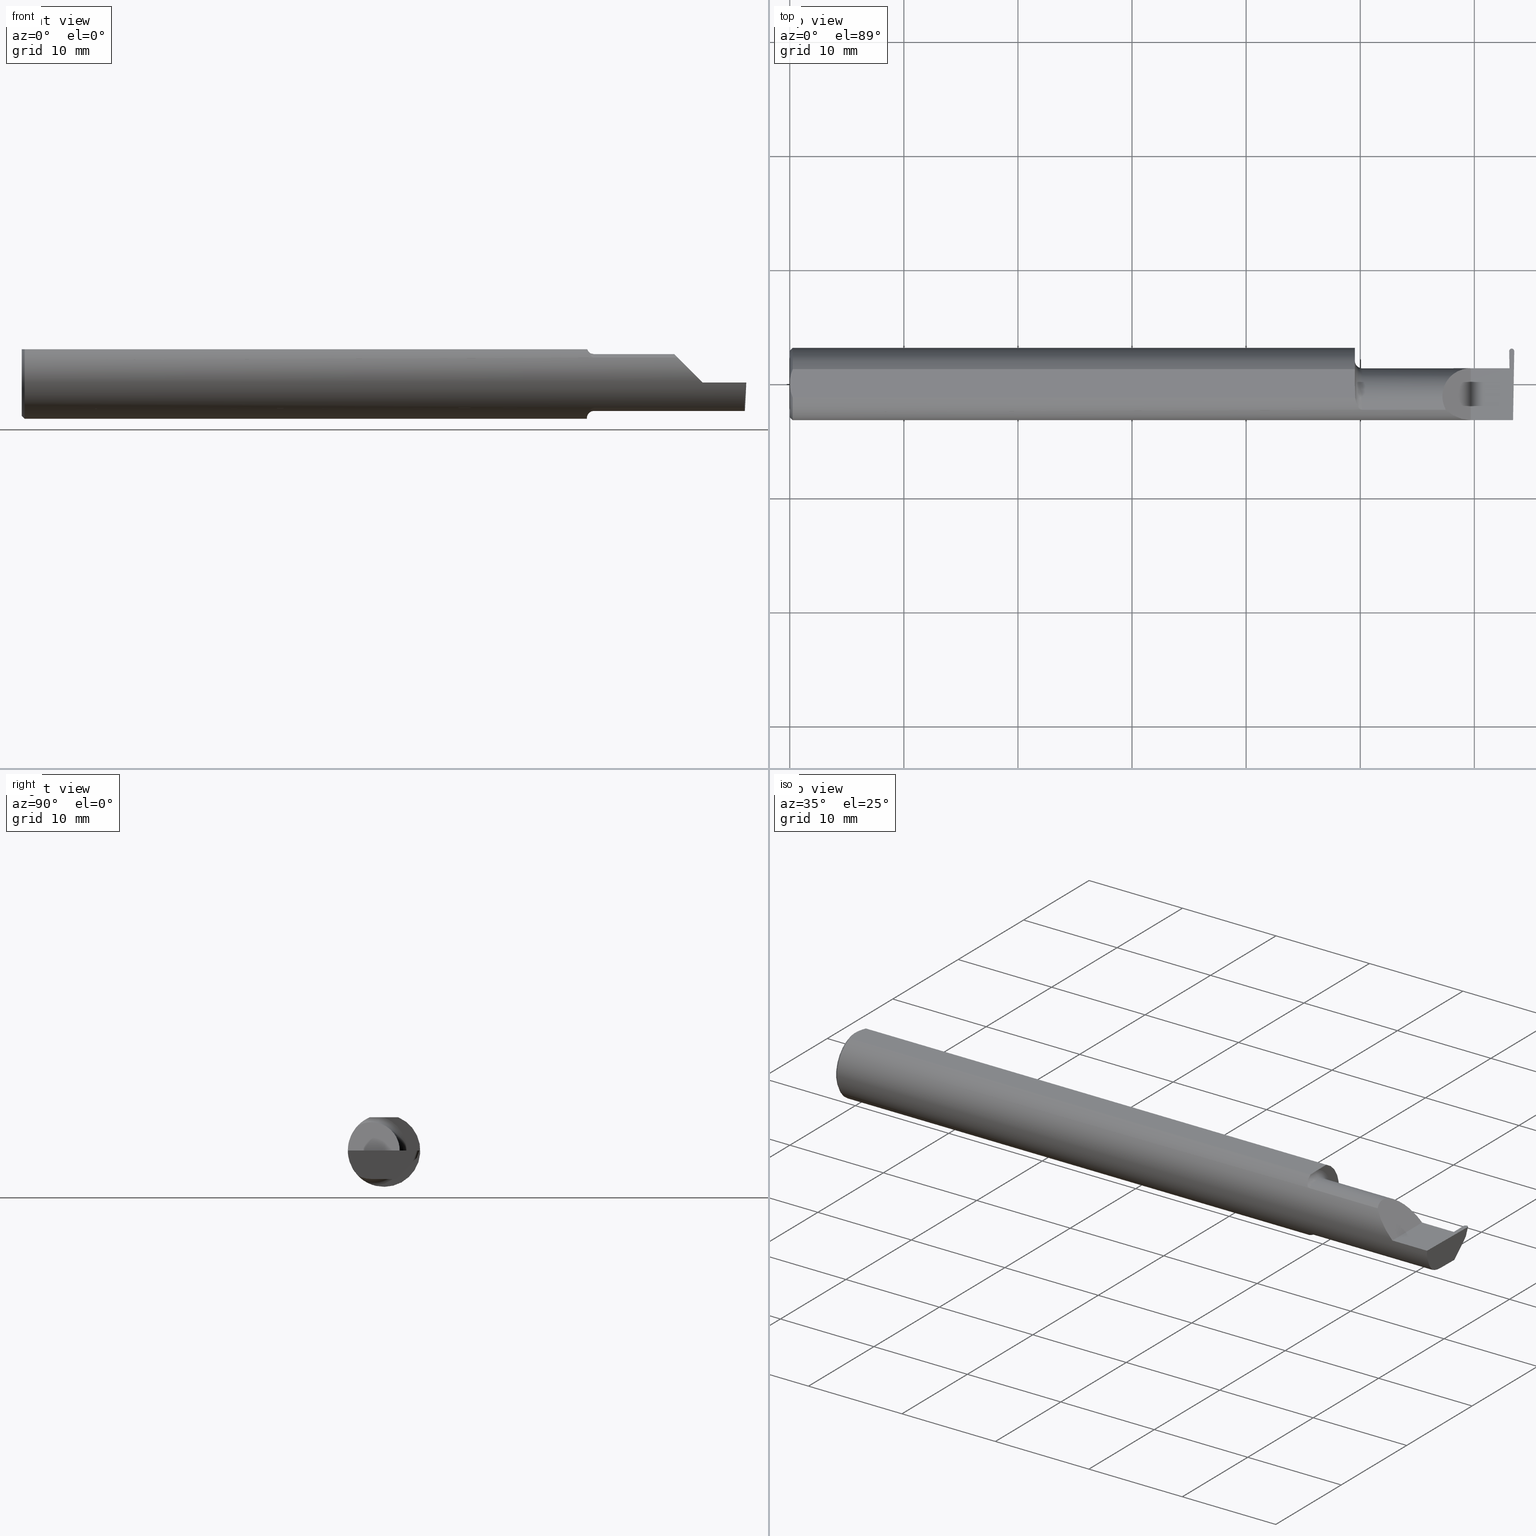
[diagram: canonical four-view strip — front | top / right | iso, engineering-drawing reading convention]
A machine part, canonical four-view strip (front | top / right | iso — engineering-drawing reading convention). The complete STEP part file that produces these views, byte-faithful:
ISO-10303-21;
HEADER;
FILE_DESCRIPTION (( 'STEP AP203' ),
    '1' );
FILE_NAME ('221918-GFR017Q-8.STEP',
    '2024-06-17T18:39:30',
    ( '' ),
    ( '' ),
    'SwSTEP 2.0',
    'SolidWorks 2022',
    '' );
FILE_SCHEMA (( 'CONFIG_CONTROL_DESIGN' ));
ENDSEC;

DATA;
#1 = VERTEX_POINT ( 'NONE', #115 ) ;
#2 = B_SPLINE_CURVE_WITH_KNOTS ( 'NONE', 3,
 ( #521, #93, #359, #642, #52, #631, #318, #646, #149, #696, #572, #683 ),
 .UNSPECIFIED., .F., .F.,
 ( 4, 2, 2, 2, 2, 4 ),
 ( 1.964009442425878487E-07, 0.0001304774066965835465, 0.0002607584124489245006, 0.0005213204239535936153, 0.001042444446962931086, 0.002084692492981607328 ),
 .UNSPECIFIED. ) ;
#3 = CARTESIAN_POINT ( 'NONE',  ( 1.970169762358874088, -0.08954173371311460738, 0.08723520050116033431 ) ) ;
#4 = CARTESIAN_POINT ( 'NONE',  ( 2.477090476183632539, 0.05376127692546276565, -0.006836134426923926553 ) ) ;
#5 = EDGE_CURVE ( 'NONE', #377, #389, #495, .T. ) ;
#6 = EDGE_CURVE ( 'NONE', #270, #13, #660, .T. ) ;
#7 = ORIENTED_EDGE ( 'NONE', *, *, #351, .T. ) ;
#8 = AXIS2_PLACEMENT_3D ( 'NONE', #60, #267, #539 ) ;
#9 = ORIENTED_EDGE ( 'NONE', *, *, #89, .F. ) ;
#10 = EDGE_CURVE ( 'NONE', #69, #497, #265, .T. ) ;
#11 = VERTEX_POINT ( 'NONE', #162 ) ;
#12 = CARTESIAN_POINT ( 'NONE',  ( 0.000000000000000000, 0.000000000000000000, 0.000000000000000000 ) ) ;
#13 = VERTEX_POINT ( 'NONE', #443 ) ;
#14 = DIRECTION ( 'NONE',  ( -0.03701368837992521227, 0.7066222423871550973, 0.7066222423871629799 ) ) ;
#15 = AXIS2_PLACEMENT_3D ( 'NONE', #12, #551, #181 ) ;
#16 = CARTESIAN_POINT ( 'NONE',  ( 1.949999999999999956, 0.05376127692546273096, -0.006836134426925155605 ) ) ;
#17 = ORIENTED_EDGE ( 'NONE', *, *, #6, .T. ) ;
#18 = FACE_OUTER_BOUND ( 'NONE', #392, .T. ) ;
#19 = ORIENTED_EDGE ( 'NONE', *, *, #260, .T. ) ;
#20 = CARTESIAN_POINT ( 'NONE',  ( 2.487116141968339189, -0.04422966076191067741, -0.09800000000000008704 ) ) ;
#21 = DIRECTION ( 'NONE',  ( -0.03549161113179514354, 0.03487750912278164694, 0.9987611851171729338 ) ) ;
#22 = CARTESIAN_POINT ( 'NONE',  ( 0.000000000000000000, 0.04898979485566374442, 0.1149999999999999217 ) ) ;
#23 = EDGE_CURVE ( 'NONE', #540, #515, #102, .T. ) ;
#24 = VERTEX_POINT ( 'NONE', #385 ) ;
#25 = CARTESIAN_POINT ( 'NONE',  ( 2.482619091902263264, 0.1593323594802356913, 0.02159622219918818850 ) ) ;
#26 =( CONVERSION_BASED_UNIT ( 'INCH', #673 ) LENGTH_UNIT ( ) NAMED_UNIT ( #35 ) );
#27 = VECTOR ( 'NONE', #613, 39.37007874015748143 ) ;
#28 = CARTESIAN_POINT ( 'NONE',  ( 2.498428636891867782, 0.09954970949977201555, -0.03818642778127616377 ) ) ;
#29 = CIRCLE ( 'NONE', #634, 0.1250000000000000000 ) ;
#30 = CARTESIAN_POINT ( 'NONE',  ( 2.491241705000000195, 0.1136654917638221379, -0.02407064551722588180 ) ) ;
#31 = PERSON_AND_ORGANIZATION_ROLE ( 'design_owner' ) ;
#32 = DESIGN_CONTEXT ( 'detailed design', #648, 'design' ) ;
#33 = CARTESIAN_POINT ( 'NONE',  ( 1.949999999999999956, 0.000000000000000000, 0.000000000000000000 ) ) ;
#34 = VERTEX_POINT ( 'NONE', #659 ) ;
#35 = DIMENSIONAL_EXPONENTS ( 1.000000000000000000, 0.000000000000000000, 0.000000000000000000, 0.000000000000000000, 0.000000000000000000, 0.000000000000000000, 0.000000000000000000 ) ;
#36 = CARTESIAN_POINT ( 'NONE',  ( 2.482484743930750248, 0.1130888516759625262, 0.000000000000000000 ) ) ;
#37 = PRODUCT ( '221918-GFR017Q-8', '221918-GFR017Q-8', '', ( #555 ) ) ;
#38 = ORIENTED_EDGE ( 'NONE', *, *, #661, .F. ) ;
#39 = DATE_TIME_ROLE ( 'creation_date' ) ;
#40 = DIRECTION ( 'NONE',  ( 0.03490480639812536257, 0.000000000000000000, -0.9993906415863165194 ) ) ;
#41 = ORIENTED_EDGE ( 'NONE', *, *, #5, .T. ) ;
#42 = PERSON_AND_ORGANIZATION ( #624, #255 ) ;
#43 = AXIS2_PLACEMENT_3D ( 'NONE', #188, #280, #411 ) ;
#44 = CARTESIAN_POINT ( 'NONE',  ( 0.000000000000000000, 3.414809992080329023E-17, 0.1149999999999999217 ) ) ;
#45 = DIRECTION ( 'NONE',  ( 0.000000000000000000, 0.000000000000000000, -1.000000000000000000 ) ) ;
#46 = ORIENTED_EDGE ( 'NONE', *, *, #480, .F. ) ;
#47 = DIRECTION ( 'NONE',  ( 0.000000000000000000, 0.000000000000000000, 1.000000000000000000 ) ) ;
#48 = DIRECTION ( 'NONE',  ( 0.7071067811865530128, 0.000000000000000000, -0.7071067811865421326 ) ) ;
#49 = LINE ( 'NONE', #482, #335 ) ;
#50 = EDGE_LOOP ( 'NONE', ( #120, #568, #438, #691, #96, #699, #214, #73, #312, #92 ) ) ;
#51 = CARTESIAN_POINT ( 'NONE',  ( 2.493888306049834025, -0.04088383864926517508, -0.09800000000000008704 ) ) ;
#52 = CARTESIAN_POINT ( 'NONE',  ( 1.967439721641150552, -0.08786602687380742904, -0.08891702384475583254 ) ) ;
#53 = APPROVAL_DATE_TIME ( #586, #189 ) ;
#54 = EDGE_LOOP ( 'NONE', ( #202, #223, #179, #226, #477, #103 ) ) ;
#55 = APPROVAL_PERSON_ORGANIZATION ( #530, #444, #580 ) ;
#56 = ADVANCED_FACE ( 'NONE', ( #596 ), #328, .F. ) ;
#57 = CARTESIAN_POINT ( 'NONE',  ( 2.491241705000000195, 0.1136654917638221379, -0.02407064551722588180 ) ) ;
#58 = CARTESIAN_POINT ( 'NONE',  ( 2.477249624899990899, 0.05392042564182090297, -0.002278711475641305526 ) ) ;
#59 = EDGE_CURVE ( 'NONE', #158, #289, #83, .T. ) ;
#60 = CARTESIAN_POINT ( 'NONE',  ( 2.753179778023443269, 0.1250000000000000278, 0.1149999999999999217 ) ) ;
#61 = CARTESIAN_POINT ( 'NONE',  ( 1.951184456069788187, -0.03277259381711294245, 0.1149999999999999356 ) ) ;
#62 = DIRECTION ( 'NONE',  ( -0.9992386149554827179, 0.01744177490282193196, 0.03489949670250104552 ) ) ;
#63 = CARTESIAN_POINT ( 'NONE',  ( 2.491241705000000195, 0.1210669986517045327, -0.002709632664605812237 ) ) ;
#64 = ORIENTED_EDGE ( 'NONE', *, *, #405, .T. ) ;
#65 = CIRCLE ( 'NONE', #346, 0.1250000000000000000 ) ;
#66 = AXIS2_PLACEMENT_3D ( 'NONE', #82, #669, #468 ) ;
#67 = ORIENTED_EDGE ( 'NONE', *, *, #550, .T. ) ;
#68 = DIRECTION ( 'NONE',  ( -1.000000000000000000, -0.000000000000000000, -0.000000000000000000 ) ) ;
#69 = VERTEX_POINT ( 'NONE', #28 ) ;
#70 =( BOUNDED_CURVE ( )  B_SPLINE_CURVE ( 3, ( #169, #215, #217, #166 ),
 .UNSPECIFIED., .F., .F. ) 
 B_SPLINE_CURVE_WITH_KNOTS ( ( 4, 4 ),
 ( 3.176499238629681532, 4.677482395344799926 ),
 .UNSPECIFIED. ) 
 CURVE ( )  GEOMETRIC_REPRESENTATION_ITEM ( )  RATIONAL_B_SPLINE_CURVE ( ( 1.000000000000000000, 0.8209024677461147501, 0.8209024677461147501, 1.000000000000000000 ) ) 
 REPRESENTATION_ITEM ( '' )  );
#71 = FACE_OUTER_BOUND ( 'NONE', #400, .T. ) ;
#72 = CARTESIAN_POINT ( 'NONE',  ( 2.317450832343515899, -0.1250000000000000278, 0.03254916765648410010 ) ) ;
#73 = ORIENTED_EDGE ( 'NONE', *, *, #351, .F. ) ;
#74 = CARTESIAN_POINT ( 'NONE',  ( 0.000000000000000000, 3.414809992080329023E-17, 0.1149999999999999217 ) ) ;
#75 =( BOUNDED_CURVE ( )  B_SPLINE_CURVE ( 3, ( #681, #574, #366, #90 ),
 .UNSPECIFIED., .F., .T. ) 
 B_SPLINE_CURVE_WITH_KNOTS ( ( 4, 4 ),
 ( 6.253187659403604215, 6.746650124384891534 ),
 .UNSPECIFIED. ) 
 CURVE ( )  GEOMETRIC_REPRESENTATION_ITEM ( )  RATIONAL_B_SPLINE_CURVE ( ( 1.000000000000000000, 0.9798106333074689811, 0.9798106333074689811, 1.000000000000000000 ) ) 
 REPRESENTATION_ITEM ( '' )  );
#76 = AXIS2_PLACEMENT_3D ( 'NONE', #177, #556, #284 ) ;
#77 = EDGE_CURVE ( 'NONE', #262, #307, #184, .T. ) ;
#78 = DIRECTION ( 'NONE',  ( 0.000000000000000000, -0.9455185755993166241, 0.3255681544571570885 ) ) ;
#79 = B_SPLINE_CURVE_WITH_KNOTS ( 'NONE', 3,
 ( #694, #253, #239, #578 ),
 .UNSPECIFIED., .F., .F.,
 ( 4, 4 ),
 ( 0.002331518380383306322, 0.003601362264757408584 ),
 .UNSPECIFIED. ) ;
#80 = VERTEX_POINT ( 'NONE', #509 ) ;
#81 = DIRECTION ( 'NONE',  ( -1.000000000000000000, 6.412988513727268357E-17, -0.000000000000000000 ) ) ;
#82 = CARTESIAN_POINT ( 'NONE',  ( 1.949999999999999956, -0.04400000000000006684, 0.000000000000000000 ) ) ;
#83 = LINE ( 'NONE', #610, #27 ) ;
#84 = ORIENTED_EDGE ( 'NONE', *, *, #391, .T. ) ;
#85 = CARTESIAN_POINT ( 'NONE',  ( 2.483516143673287768, 0.05399999999999997163, 0.000000000000000000 ) ) ;
#86 = CARTESIAN_POINT ( 'NONE',  ( 2.482491560144744369, 0.1126983510377570080, 0.000000000000000000 ) ) ;
#87 = VERTEX_POINT ( 'NONE', #506 ) ;
#88 = FACE_OUTER_BOUND ( 'NONE', #367, .T. ) ;
#89 = EDGE_CURVE ( 'NONE', #218, #34, #445, .T. ) ;
#90 = CARTESIAN_POINT ( 'NONE',  ( 2.493833913251130241, -0.04400000000000026112, -0.09800000000000008704 ) ) ;
#91 = APPROVAL ( #380, 'UNSPECIFIED' ) ;
#92 = ORIENTED_EDGE ( 'NONE', *, *, #260, .F. ) ;
#93 = CARTESIAN_POINT ( 'NONE',  ( 1.973259114367879707, -0.09042045454545442895, -0.08630840862739515285 ) ) ;
#94 = PERSON_AND_ORGANIZATION ( #624, #255 ) ;
#95 = PLANE ( 'NONE',  #558 ) ;
#96 = ORIENTED_EDGE ( 'NONE', *, *, #159, .T. ) ;
#97 = LINE ( 'NONE', #51, #143 ) ;
#98 = B_SPLINE_CURVE_WITH_KNOTS ( 'NONE', 3,
 ( #199, #368, #61, #221, #116, #431 ),
 .UNSPECIFIED., .F., .F.,
 ( 4, 2, 4 ),
 ( 0.009319464280412597182, 0.009934044568948198831, 0.01054862485748380048 ),
 .UNSPECIFIED. ) ;
#99 = LINE ( 'NONE', #644, #462 ) ;
#100 = VERTEX_POINT ( 'NONE', #349 ) ;
#101 = CARTESIAN_POINT ( 'NONE',  ( 2.491241705000000195, 0.1136654917638221379, -0.02407064551722588180 ) ) ;
#102 = CIRCLE ( 'NONE', #292, 0.1250000000000000000 ) ;
#103 = ORIENTED_EDGE ( 'NONE', *, *, #553, .T. ) ;
#104 = CC_DESIGN_SECURITY_CLASSIFICATION ( #561, ( #441 ) ) ;
#105 = CARTESIAN_POINT ( 'NONE',  ( 2.228741705000000017, -0.09042045454545429017, 0.08630840862739524999 ) ) ;
#106 = ORIENTED_EDGE ( 'NONE', *, *, #653, .F. ) ;
#107 =( BOUNDED_CURVE ( )  B_SPLINE_CURVE ( 3, ( #454, #672, #340, #30 ),
 .UNSPECIFIED., .F., .T. ) 
 B_SPLINE_CURVE_WITH_KNOTS ( ( 4, 4 ),
 ( 4.726121454046339210, 6.201952002335866077 ),
 .UNSPECIFIED. ) 
 CURVE ( )  GEOMETRIC_REPRESENTATION_ITEM ( )  RATIONAL_B_SPLINE_CURVE ( ( 1.000000000000000000, 0.8265817722885200336, 0.8265817722885200336, 1.000000000000000000 ) ) 
 REPRESENTATION_ITEM ( '' )  );
#108 = CARTESIAN_POINT ( 'NONE',  ( 1.951278290187167697, -0.04898979485482139740, 0.1149999999999999217 ) ) ;
#109 = ORIENTED_EDGE ( 'NONE', *, *, #150, .T. ) ;
#110 = EDGE_CURVE ( 'NONE', #630, #377, #399, .T. ) ;
#111 = CARTESIAN_POINT ( 'NONE',  ( 1.952426556614086817, -0.05801934803182858674, 0.1111534264545073619 ) ) ;
#112 = DIRECTION ( 'NONE',  ( 0.000000000000000000, 0.000000000000000000, -1.000000000000000000 ) ) ;
#113 = ADVANCED_FACE ( 'NONE', ( #396 ), #496, .F. ) ;
#114 = VECTOR ( 'NONE', #245, 39.37007874015748143 ) ;
#115 = CARTESIAN_POINT ( 'NONE',  ( 2.350000000000000089, -0.1250000000000000278, 1.836970198721028825E-17 ) ) ;
#116 = CARTESIAN_POINT ( 'NONE',  ( 1.950000000000000178, -0.008475349815581094057, 0.1149999999999999356 ) ) ;
#117 = ORIENTED_EDGE ( 'NONE', *, *, #271, .T. ) ;
#118 = CC_DESIGN_PERSON_AND_ORGANIZATION_ASSIGNMENT ( #426, #428, ( #441 ) ) ;
#119 = CARTESIAN_POINT ( 'NONE',  ( 2.485980426908312779, 0.1220000000000002333, 1.771906798517136265E-17 ) ) ;
#120 = ORIENTED_EDGE ( 'NONE', *, *, #464, .T. ) ;
#121 = VECTOR ( 'NONE', #455, 39.37007874015748143 ) ;
#122 = AXIS2_PLACEMENT_3D ( 'NONE', #148, #47, #590 ) ;
#123 = DIRECTION ( 'NONE',  ( 0.000000000000000000, -0.3255681544571570885, -0.9455185755993166241 ) ) ;
#124 = CARTESIAN_POINT ( 'NONE',  ( 0.004414142251465132810, -0.03315347577847933824, 0.1149999999999999356 ) ) ;
#125 = CARTESIAN_POINT ( 'NONE',  ( 2.487309710820275743, -2.433500170848689415, -0.02001865397949318184 ) ) ;
#126 = PLANE ( 'NONE',  #573 ) ;
#127 = EDGE_CURVE ( 'NONE', #1, #617, #616, .T. ) ;
#128 = CARTESIAN_POINT ( 'NONE',  ( 2.287236475649208511, -0.1128945894460739036, 0.06276352435079098069 ) ) ;
#129 = CARTESIAN_POINT ( 'NONE',  ( 2.499991849855255133, 0.1126983510377570219, 0.000000000000000000 ) ) ;
#130 = CARTESIAN_POINT ( 'NONE',  ( 1.949999999999999956, 0.05399999999999999245, 6.735557395310437586E-17 ) ) ;
#131 = APPROVAL_PERSON_ORGANIZATION ( #211, #91, #264 ) ;
#132 = LOCAL_TIME ( 11, 39, 30.00000000000000000, #419 ) ;
#133 = DIRECTION ( 'NONE',  ( -1.224646799147352468E-16, 0.000000000000000000, -1.000000000000000000 ) ) ;
#134 = CARTESIAN_POINT ( 'NONE',  ( 2.350000000000000089, -0.2500000000000000555, 1.836970198721028825E-17 ) ) ;
#135 = ADVANCED_FACE ( 'NONE', ( #281 ), #341, .T. ) ;
#136 = ORIENTED_EDGE ( 'NONE', *, *, #334, .F. ) ;
#137 = CARTESIAN_POINT ( 'NONE',  ( 2.263691591372603895, -0.09042045454545455385, 0.08630840862739504182 ) ) ;
#138 = CARTESIAN_POINT ( 'NONE',  ( 2.499991849855255133, 0.1126983510377570219, 0.000000000000000000 ) ) ;
#139 = ORIENTED_EDGE ( 'NONE', *, *, #524, .F. ) ;
#140 = FACE_OUTER_BOUND ( 'NONE', #679, .T. ) ;
#141 = DIRECTION ( 'NONE',  ( 0.000000000000000000, -1.000000000000000000, 0.000000000000000000 ) ) ;
#142 = ORIENTED_EDGE ( 'NONE', *, *, #689, .T. ) ;
#143 = VECTOR ( 'NONE', #263, 39.37007874015748854 ) ;
#144 = COORDINATED_UNIVERSAL_TIME_OFFSET ( 8, 0, .BEHIND. ) ;
#145 = DIRECTION ( 'NONE',  ( 0.000000000000000000, -1.000000000000000000, 0.000000000000000000 ) ) ;
#146 = VERTEX_POINT ( 'NONE', #459 ) ;
#147 = ADVANCED_FACE ( 'NONE', ( #225 ), #678, .F. ) ;
#148 = CARTESIAN_POINT ( 'NONE',  ( 2.672413070268786939, -0.04400000000000026112, -0.09800000000000008704 ) ) ;
#149 = CARTESIAN_POINT ( 'NONE',  ( 1.955932841370988884, -0.07048791403321996718, -0.1034389270157552443 ) ) ;
#150 = EDGE_CURVE ( 'NONE', #1, #186, #628, .T. ) ;
#151 = DIRECTION ( 'NONE',  ( 0.000000000000000000, 1.000000000000000000, 0.000000000000000000 ) ) ;
#152 = ORIENTED_EDGE ( 'NONE', *, *, #252, .F. ) ;
#153 = PERSON_AND_ORGANIZATION_ROLE ( 'classification_officer' ) ;
#154 = EDGE_CURVE ( 'NONE', #592, #270, #344, .T. ) ;
#155 = DIRECTION ( 'NONE',  ( -0.03867711768363056579, 0.3253245514560478280, 0.9448111011136606230 ) ) ;
#156 = ORIENTED_EDGE ( 'NONE', *, *, #553, .F. ) ;
#157 = VECTOR ( 'NONE', #458, 39.37007874015747433 ) ;
#158 = VERTEX_POINT ( 'NONE', #408 ) ;
#159 = EDGE_CURVE ( 'NONE', #617, #13, #604, .T. ) ;
#160 = DATE_AND_TIME ( #319, #448 ) ;
#161 = CARTESIAN_POINT ( 'NONE',  ( 2.482491560144744369, 0.1126983510377570080, 0.000000000000000000 ) ) ;
#162 = CARTESIAN_POINT ( 'NONE',  ( 2.491241705000000195, 0.1136654917638221379, -0.02407064551722588180 ) ) ;
#163 = ORIENTED_EDGE ( 'NONE', *, *, #405, .F. ) ;
#164 = AXIS2_PLACEMENT_3D ( 'NONE', #670, #78, #123 ) ;
#165 = APPROVAL_PERSON_ORGANIZATION ( #42, #189, #701 ) ;
#166 = CARTESIAN_POINT ( 'NONE',  ( 2.483759070038810801, 0.05376127692546273790, -0.006836134426924772231 ) ) ;
#167 = VERTEX_POINT ( 'NONE', #86 ) ;
#168 =( BOUNDED_CURVE ( )  B_SPLINE_CURVE ( 3, ( #356, #311, #413, #192 ),
 .UNSPECIFIED., .F., .T. ) 
 B_SPLINE_CURVE_WITH_KNOTS ( ( 4, 4 ),
 ( 0.3451966888490702323, 1.107331509589587926 ),
 .UNSPECIFIED. ) 
 CURVE ( )  GEOMETRIC_REPRESENTATION_ITEM ( )  RATIONAL_B_SPLINE_CURVE ( ( 1.000000000000000000, 0.9521787881681380572, 0.9521787881681380572, 1.000000000000000000 ) ) 
 REPRESENTATION_ITEM ( '' )  );
#169 = CARTESIAN_POINT ( 'NONE',  ( 2.487115857322145018, -0.04400000000000009459, -0.09800000000000008704 ) ) ;
#170 = EDGE_LOOP ( 'NONE', ( #353, #297 ) ) ;
#171 = CARTESIAN_POINT ( 'NONE',  ( 2.350000000000000089, -0.2500000000000000555, 1.836970198721028825E-17 ) ) ;
#172 = CARTESIAN_POINT ( 'NONE',  ( -3.937007874019685528E-05, 0.03973613728104874454, -0.09800000000000008704 ) ) ;
#173 = CONICAL_SURFACE ( 'NONE', #388, 0.1149999999999997274, 0.7853981633974407295 ) ;
#174 = FACE_OUTER_BOUND ( 'NONE', #638, .T. ) ;
#175 = ADVANCED_FACE ( 'NONE', ( #18 ), #567, .T. ) ;
#176 = CARTESIAN_POINT ( 'NONE',  ( 1.541666659510484467E-16, -0.008419750986449443114, 0.1149999999999999356 ) ) ;
#177 = CARTESIAN_POINT ( 'NONE',  ( 1.949999999999999956, 0.1249999999999999167, 0.000000000000000000 ) ) ;
#178 = ADVANCED_FACE ( 'NONE', ( #621 ), #337, .F. ) ;
#179 = ORIENTED_EDGE ( 'NONE', *, *, #387, .T. ) ;
#180 = CARTESIAN_POINT ( 'NONE',  ( 2.499998666069249253, 0.1130888516759625262, 0.000000000000000000 ) ) ;
#181 = DIRECTION ( 'NONE',  ( 0.000000000000000000, 0.000000000000000000, 1.000000000000000000 ) ) ;
#182 = ORIENTED_EDGE ( 'NONE', *, *, #228, .F. ) ;
#183 = DIRECTION ( 'NONE',  ( -0.001239419280281409477, 0.9999992319196288060, 0.000000000000000000 ) ) ;
#184 = CIRCLE ( 'NONE', #677, 0.1149999999999997274 ) ;
#185 = CARTESIAN_POINT ( 'NONE',  ( -3.937007874019685528E-05, 0.1219999999999999835, 0.000000000000000000 ) ) ;
#186 = VERTEX_POINT ( 'NONE', #393 ) ;
#187 = DIRECTION ( 'NONE',  ( 0.000000000000000000, 0.000000000000000000, -1.000000000000000000 ) ) ;
#188 = CARTESIAN_POINT ( 'NONE',  ( 0.000000000000000000, 0.000000000000000000, 0.000000000000000000 ) ) ;
#189 = APPROVAL ( #692, 'UNSPECIFIED' ) ;
#190 = CARTESIAN_POINT ( 'NONE',  ( 2.487012073059427397, 0.03973613728104876536, -0.09800000000000008704 ) ) ;
#191 = LINE ( 'NONE', #688, #422 ) ;
#192 = CARTESIAN_POINT ( 'NONE',  ( 2.495842809704562626, -0.1250000000000000000, 0.000000000000000000 ) ) ;
#193 = ORIENTED_EDGE ( 'NONE', *, *, #5, .F. ) ;
#194 = CARTESIAN_POINT ( 'NONE',  ( 0.000000000000000000, 0.000000000000000000, -0.1149999999999997274 ) ) ;
#195 = APPROVAL_DATE_TIME ( #160, #444 ) ;
#196 = CARTESIAN_POINT ( 'NONE',  ( 1.949999999999999956, -0.04400000000000006684, 0.000000000000000000 ) ) ;
#197 = EDGE_LOOP ( 'NONE', ( #7, #700, #156, #216 ) ) ;
#198 = PLANE ( 'NONE',  #122 ) ;
#199 = CARTESIAN_POINT ( 'NONE',  ( 1.951278290187167697, -0.04898979485482139740, 0.1149999999999999217 ) ) ;
#200 = EDGE_CURVE ( 'NONE', #100, #1, #446, .T. ) ;
#201 = CYLINDRICAL_SURFACE ( 'NONE', #654, 0.008749999999999999098 ) ;
#202 = ORIENTED_EDGE ( 'NONE', *, *, #480, .T. ) ;
#203 = LINE ( 'NONE', #415, #114 ) ;
#204 = COORDINATED_UNIVERSAL_TIME_OFFSET ( 8, 0, .BEHIND. ) ;
#205 = CARTESIAN_POINT ( 'NONE',  ( 2.487115857322145018, -0.04400000000000009459, -0.09800000000000008704 ) ) ;
#206 = ORIENTED_EDGE ( 'NONE', *, *, #391, .F. ) ;
#207 = PERSON_AND_ORGANIZATION_ROLE ( 'design_supplier' ) ;
#208 = ADVANCED_FACE ( 'NONE', ( #174 ), #95, .F. ) ;
#209 = DIRECTION ( 'NONE',  ( 6.412988513727268357E-17, 1.000000000000000000, -0.000000000000000000 ) ) ;
#210 = VERTEX_POINT ( 'NONE', #190 ) ;
#211 = PERSON_AND_ORGANIZATION ( #624, #255 ) ;
#212 = AXIS2_PLACEMENT_3D ( 'NONE', #350, #623, #569 ) ;
#213 = CARTESIAN_POINT ( 'NONE',  ( 2.483516143673287768, 0.05399999999999997163, 0.000000000000000000 ) ) ;
#214 = ORIENTED_EDGE ( 'NONE', *, *, #154, .F. ) ;
#215 = CARTESIAN_POINT ( 'NONE',  ( 2.487048583644937416, 0.01027834358092123007, -0.09800000000000007316 ) ) ;
#216 = ORIENTED_EDGE ( 'NONE', *, *, #577, .F. ) ;
#217 = CARTESIAN_POINT ( 'NONE',  ( 2.485685536098598103, 0.04997501107658529340, -0.06098225869090300594 ) ) ;
#218 = VERTEX_POINT ( 'NONE', #570 ) ;
#219 = CONICAL_SURFACE ( 'NONE', #212, 0.1149999999999997274, 0.7853981633974407295 ) ;
#220 = CARTESIAN_POINT ( 'NONE',  ( 2.491130782529545673, 0.1219999999999999835, 0.000000000000000000 ) ) ;
#221 = CARTESIAN_POINT ( 'NONE',  ( 1.950474906351709059, -0.01657217611496013959, 0.1149999999999999217 ) ) ;
#222 = DIRECTION ( 'NONE',  ( -0.03867711768362981639, -0.3253245514560478280, -0.9448111011136606230 ) ) ;
#223 = ORIENTED_EDGE ( 'NONE', *, *, #534, .T. ) ;
#224 = EDGE_CURVE ( 'NONE', #357, #167, #629, .T. ) ;
#225 = FACE_OUTER_BOUND ( 'NONE', #695, .T. ) ;
#226 = ORIENTED_EDGE ( 'NONE', *, *, #657, .T. ) ;
#227 = CARTESIAN_POINT ( 'NONE',  ( 0.000000000000000000, 0.000000000000000000, 0.000000000000000000 ) ) ;
#228 = EDGE_CURVE ( 'NONE', #497, #377, #336, .T. ) ;
#229 = DIRECTION ( 'NONE',  ( -1.000000000000000000, 6.412988513727268357E-17, -0.000000000000000000 ) ) ;
#230 = ORIENTED_EDGE ( 'NONE', *, *, #478, .T. ) ;
#231 = LINE ( 'NONE', #180, #157 ) ;
#232 = DIRECTION ( 'NONE',  ( 0.9993699743034455407, 0.001238639365660611094, 0.03546999060124707975 ) ) ;
#233 = CARTESIAN_POINT ( 'NONE',  ( 0.01000000000000042348, 0.000000000000000000, -0.1250000000000000000 ) ) ;
#234 = DIRECTION ( 'NONE',  ( -1.000000000000000000, -0.000000000000000000, -0.000000000000000000 ) ) ;
#235 = CC_DESIGN_PERSON_AND_ORGANIZATION_ASSIGNMENT ( #256, #153, ( #561 ) ) ;
#236 = EDGE_LOOP ( 'NONE', ( #439, #333, #687, #230 ) ) ;
#237 = FACE_OUTER_BOUND ( 'NONE', #54, .T. ) ;
#238 = VECTOR ( 'NONE', #666, 39.37007874015748143 ) ;
#239 = CARTESIAN_POINT ( 'NONE',  ( 0.003880275146595849479, 0.03337499979622342988, 0.1149999999999999217 ) ) ;
#240 = VECTOR ( 'NONE', #282, 39.37007874015748854 ) ;
#241 = DIRECTION ( 'NONE',  ( 1.000000000000000000, 0.000000000000000000, 0.000000000000000000 ) ) ;
#242 = APPLICATION_PROTOCOL_DEFINITION ( 'international standard', 'config_control_design', 1994, #648 ) ;
#243 = FACE_OUTER_BOUND ( 'NONE', #488, .T. ) ;
#244 = EDGE_LOOP ( 'NONE', ( #492, #656, #545 ) ) ;
#245 = DIRECTION ( 'NONE',  ( 1.000000000000000000, 0.000000000000000000, 0.000000000000000000 ) ) ;
#246 = DIRECTION ( 'NONE',  ( 0.9992386149554827179, 0.01744177490282417323, 0.03489949670250104552 ) ) ;
#247 = EDGE_CURVE ( 'NONE', #146, #24, #376, .T. ) ;
#248 = ORIENTED_EDGE ( 'NONE', *, *, #224, .F. ) ;
#249 = DIRECTION ( 'NONE',  ( -0.03701368837992363020, -0.7066222423871550973, -0.7066222423871629799 ) ) ;
#250 = CALENDAR_DATE ( 2024, 17, 6 ) ;
#251 = B_SPLINE_CURVE_WITH_KNOTS ( 'NONE', 3,
 ( #108, #111, #322, #651, #487, #269, #320, #3, #384, #658 ),
 .UNSPECIFIED., .F., .F.,
 ( 4, 2, 2, 2, 4 ),
 ( 5.067393806718675637E-07, 0.0007430328995835074274, 0.001114295979684925154, 0.001299927519735633637, 0.001485559059786342338 ),
 .UNSPECIFIED. ) ;
#252 = EDGE_CURVE ( 'NONE', #80, #100, #168, .T. ) ;
#253 = CARTESIAN_POINT ( 'NONE',  ( 1.642610067308552155E-16, 0.01684316307400865464, 0.1149999999999999217 ) ) ;
#254 = ORIENTED_EDGE ( 'NONE', *, *, #653, .T. ) ;
#255 = ORGANIZATION ( 'UNSPECIFIED', 'UNSPECIFIED', '' ) ;
#256 = PERSON_AND_ORGANIZATION ( #624, #255 ) ;
#257 = CARTESIAN_POINT ( 'NONE',  ( 2.483516143673287768, 0.05399999999999997163, 0.000000000000000000 ) ) ;
#258 = CARTESIAN_POINT ( 'NONE',  ( 1.949999999999999956, -0.02763636363636367069, -0.1219066503721543265 ) ) ;
#259 = EDGE_LOOP ( 'NONE', ( #424, #417, #268, #193, #182 ) ) ;
#260 = EDGE_CURVE ( 'NONE', #80, #158, #75, .T. ) ;
#261 = CARTESIAN_POINT ( 'NONE',  ( 2.498428636891867782, 0.09954970949977201555, -0.03818642778127616377 ) ) ;
#262 = VERTEX_POINT ( 'NONE', #302 ) ;
#263 = DIRECTION ( 'NONE',  ( -0.01745240643727527866, -0.9998476951563912696, 0.000000000000000000 ) ) ;
#264 = APPROVAL_ROLE ( '' ) ;
#265 = LINE ( 'NONE', #544, #310 ) ;
#266 = CIRCLE ( 'NONE', #547, 0.1149999999999997274 ) ;
#267 = DIRECTION ( 'NONE',  ( 0.000000000000000000, 0.000000000000000000, 1.000000000000000000 ) ) ;
#268 = ORIENTED_EDGE ( 'NONE', *, *, #326, .F. ) ;
#269 = CARTESIAN_POINT ( 'NONE',  ( 1.964945076695470139, -0.08578123596776289495, 0.09094459933485984915 ) ) ;
#270 = VERTEX_POINT ( 'NONE', #416 ) ;
#271 = EDGE_CURVE ( 'NONE', #452, #218, #65, .T. ) ;
#272 = LINE ( 'NONE', #381, #407 ) ;
#273 = EDGE_CURVE ( 'NONE', #307, #34, #79, .T. ) ;
#274 = ORIENTED_EDGE ( 'NONE', *, *, #273, .T. ) ;
#275 = ORIENTED_EDGE ( 'NONE', *, *, #329, .T. ) ;
#276 = ADVANCED_FACE ( 'NONE', ( #243 ), #201, .T. ) ;
#277 = MANIFOLD_SOLID_BREP ( 'Radii', #499 ) ;
#278 = ORIENTED_EDGE ( 'NONE', *, *, #689, .F. ) ;
#279 = DIRECTION ( 'NONE',  ( 1.000000000000000000, -0.000000000000000000, -0.000000000000000000 ) ) ;
#280 = DIRECTION ( 'NONE',  ( 0.000000000000000000, 0.000000000000000000, 1.000000000000000000 ) ) ;
#281 = FACE_OUTER_BOUND ( 'NONE', #339, .T. ) ;
#282 = DIRECTION ( 'NONE',  ( -0.02596452850600449586, 0.7068683906002055650, 0.7068683906002134476 ) ) ;
#283 = AXIS2_PLACEMENT_3D ( 'NONE', #36, #246, #40 ) ;
#284 = DIRECTION ( 'NONE',  ( 6.412988513727268357E-17, 1.000000000000000000, 0.000000000000000000 ) ) ;
#285 = EDGE_LOOP ( 'NONE', ( #552, #447, #502, #371 ) ) ;
#286 = CARTESIAN_POINT ( 'NONE',  ( 0.000000000000000000, 0.000000000000000000, 0.000000000000000000 ) ) ;
#287 = APPLICATION_PROTOCOL_DEFINITION ( 'international standard', 'config_control_design', 1994, #603 ) ;
#288 = CARTESIAN_POINT ( 'NONE',  ( 0.000000000000000000, 0.000000000000000000, 0.000000000000000000 ) ) ;
#289 = VERTEX_POINT ( 'NONE', #205 ) ;
#290 = DIRECTION ( 'NONE',  ( 0.000000000000000000, 0.000000000000000000, -1.000000000000000000 ) ) ;
#291 = DIRECTION ( 'NONE',  ( -0.7071067811865439090, 0.000000000000000000, -0.7071067811865511255 ) ) ;
#292 = AXIS2_PLACEMENT_3D ( 'NONE', #382, #323, #112 ) ;
#293 = DIRECTION ( 'NONE',  ( -1.000000000000000000, -0.000000000000000000, -0.000000000000000000 ) ) ;
#294 = PERSON_AND_ORGANIZATION ( #624, #255 ) ;
#295 = CARTESIAN_POINT ( 'NONE',  ( 1.974999999999999867, -0.04400000000000006684, 0.000000000000000000 ) ) ;
#296 = VECTOR ( 'NONE', #14, 39.37007874015748143 ) ;
#297 = ORIENTED_EDGE ( 'NONE', *, *, #77, .T. ) ;
#298 = CARTESIAN_POINT ( 'NONE',  ( 2.479909448124860472, 0.1786874275525325573, 0.04095129027148528000 ) ) ;
#299 = LINE ( 'NONE', #194, #606 ) ;
#300 = PERSON_AND_ORGANIZATION_ROLE ( 'creator' ) ;
#301 = ADVANCED_FACE ( 'NONE', ( #684 ), #370, .F. ) ;
#302 = CARTESIAN_POINT ( 'NONE',  ( 0.000000000000000000, 0.000000000000000000, -0.1149999999999997274 ) ) ;
#303 = ORIENTED_EDGE ( 'NONE', *, *, #110, .T. ) ;
#304 = APPROVAL_DATE_TIME ( #697, #91 ) ;
#305 = ADVANCED_FACE ( 'NONE', ( #472 ), #690, .T. ) ;
#306 = CARTESIAN_POINT ( 'NONE',  ( 2.491241705000000639, 0.1186085052529338296, -0.009849615936009994271 ) ) ;
#307 = VERTEX_POINT ( 'NONE', #44 ) ;
#308 = CARTESIAN_POINT ( 'NONE',  ( 2.491130782529545673, 0.1219999999999999835, 0.000000000000000000 ) ) ;
#309 = APPROVAL_STATUS ( 'not_yet_approved' ) ;
#310 = VECTOR ( 'NONE', #650, 39.37007874015748854 ) ;
#311 = CARTESIAN_POINT ( 'NONE',  ( 2.493862026000344123, -0.1128945894460738342, -0.06276352435079123049 ) ) ;
#312 = ORIENTED_EDGE ( 'NONE', *, *, #59, .F. ) ;
#313 = LOCAL_TIME ( 11, 39, 30.00000000000000000, #479 ) ;
#314 = DIRECTION ( 'NONE',  ( 1.000000000000000000, -6.412988513727268357E-17, 0.000000000000000000 ) ) ;
#315 = CC_DESIGN_DATE_AND_TIME_ASSIGNMENT ( #522, #39, ( #566 ) ) ;
#316 = EDGE_LOOP ( 'NONE', ( #645, #425, #67, #152, #19, #432 ) ) ;
#317 = DIRECTION ( 'NONE',  ( -0.03549161113179514354, 0.03487750912278164694, 0.9987611851171729338 ) ) ;
#318 = CARTESIAN_POINT ( 'NONE',  ( 1.962379706860117423, -0.08285324498731283516, -0.09364669410973919250 ) ) ;
#319 = CALENDAR_DATE ( 2024, 17, 6 ) ;
#320 = CARTESIAN_POINT ( 'NONE',  ( 1.966446811421532104, -0.08721672169474557756, 0.08955973280246691537 ) ) ;
#321 = ORIENTED_EDGE ( 'NONE', *, *, #23, .T. ) ;
#322 = CARTESIAN_POINT ( 'NONE',  ( 1.954267307214414773, -0.06631395538221165897, 0.1063681193389245799 ) ) ;
#323 = DIRECTION ( 'NONE',  ( 1.000000000000000000, 0.000000000000000000, 0.000000000000000000 ) ) ;
#324 = AXIS2_PLACEMENT_3D ( 'NONE', #560, #81, #471 ) ;
#325 = CC_DESIGN_PERSON_AND_ORGANIZATION_ASSIGNMENT ( #294, #31, ( #37 ) ) ;
#326 = EDGE_CURVE ( 'NONE', #389, #11, #420, .T. ) ;
#327 = FACE_OUTER_BOUND ( 'NONE', #259, .T. ) ;
#328 = PLANE ( 'NONE',  #491 ) ;
#329 = EDGE_CURVE ( 'NONE', #389, #630, #99, .T. ) ;
#330 = CYLINDRICAL_SURFACE ( 'NONE', #486, 0.008749999999999999098 ) ;
#331 = ORIENTED_EDGE ( 'NONE', *, *, #329, .F. ) ;
#332 = VECTOR ( 'NONE', #222, 39.37007874015748854 ) ;
#333 = ORIENTED_EDGE ( 'NONE', *, *, #577, .T. ) ;
#334 = EDGE_CURVE ( 'NONE', #146, #186, #375, .T. ) ;
#335 = VECTOR ( 'NONE', #209, 39.37007874015748143 ) ;
#336 =( BOUNDED_CURVE ( )  B_SPLINE_CURVE ( 3, ( #138, #587, #465, #698 ),
 .UNSPECIFIED., .F., .T. ) 
 B_SPLINE_CURVE_WITH_KNOTS ( ( 4, 4 ),
 ( 1.677524580234106333, 3.253450286950926529 ),
 .UNSPECIFIED. ) 
 CURVE ( )  GEOMETRIC_REPRESENTATION_ITEM ( )  RATIONAL_B_SPLINE_CURVE ( ( 1.000000000000000000, 0.8035272986452476340, 0.8035272986452476340, 1.000000000000000000 ) ) 
 REPRESENTATION_ITEM ( '' )  );
#337 = PLANE ( 'NONE',  #546 ) ;
#338 = CC_DESIGN_PERSON_AND_ORGANIZATION_ASSIGNMENT ( #643, #300, ( #566 ) ) ;
#339 = EDGE_LOOP ( 'NONE', ( #342, #571, #469, #109, #136, #427, #38, #321, #529, #9, #404, #106 ) ) ;
#340 = CARTESIAN_POINT ( 'NONE',  ( 2.486551887963902807, 0.1129002240869108470, -0.02483591319413719703 ) ) ;
#341 = CYLINDRICAL_SURFACE ( 'NONE', #15, 0.1250000000000000000 ) ;
#342 = ORIENTED_EDGE ( 'NONE', *, *, #464, .F. ) ;
#343 = CARTESIAN_POINT ( 'NONE',  ( 2.266956372099407258, 0.05399999999999999939, 0.08304362790059183208 ) ) ;
#344 = LINE ( 'NONE', #16, #538 ) ;
#345 = CARTESIAN_POINT ( 'NONE',  ( 2.350000000000000089, 0.05399999999999996469, 6.735557395310437586E-17 ) ) ;
#346 = AXIS2_PLACEMENT_3D ( 'NONE', #33, #640, #151 ) ;
#347 = LOCAL_TIME ( 11, 39, 30.00000000000000000, #639 ) ;
#348 = ADVANCED_FACE ( 'NONE', ( #327 ), #330, .T. ) ;
#349 = CARTESIAN_POINT ( 'NONE',  ( 2.495842809704562626, -0.1250000000000000000, 0.000000000000000000 ) ) ;
#350 = CARTESIAN_POINT ( 'NONE',  ( 0.000000000000000000, 0.000000000000000000, 0.000000000000000000 ) ) ;
#351 = EDGE_CURVE ( 'NONE', #289, #592, #70, .T. ) ;
#352 = DIRECTION ( 'NONE',  ( 0.03547001781079549970, 0.000000000000000000, -0.9993707409347653003 ) ) ;
#353 = ORIENTED_EDGE ( 'NONE', *, *, #526, .T. ) ;
#354 = CARTESIAN_POINT ( 'NONE',  ( 0.01000000000000042348, -0.04898979485566374442, 0.1149999999999999217 ) ) ;
#355 =( NAMED_UNIT ( * ) PLANE_ANGLE_UNIT ( ) SI_UNIT ( $, .RADIAN. ) );
#356 = CARTESIAN_POINT ( 'NONE',  ( 2.493431982762754462, -0.09042045454545430405, -0.08630840862739524999 ) ) ;
#357 = VERTEX_POINT ( 'NONE', #213 ) ;
#358 = CARTESIAN_POINT ( 'NONE',  ( 2.483516143673287768, 0.05399999999999997163, 0.000000000000000000 ) ) ;
#359 = CARTESIAN_POINT ( 'NONE',  ( 1.971593478233292451, -0.08999923832592920947, -0.08675238105120947063 ) ) ;
#360 = ADVANCED_FACE ( 'NONE', ( #535 ), #543, .T. ) ;
#361 =( LENGTH_UNIT ( ) NAMED_UNIT ( * ) SI_UNIT ( $, .METRE. ) );
#362 = DIRECTION ( 'NONE',  ( 0.000000000000000000, -0.9455185755993170682, 0.3255681544571562558 ) ) ;
#363 = VERTEX_POINT ( 'NONE', #434 ) ;
#364 = LINE ( 'NONE', #358, #463 ) ;
#365 = DATE_TIME_ROLE ( 'classification_date' ) ;
#366 = CARTESIAN_POINT ( 'NONE',  ( 2.493549648562250809, -0.06028551311893212694, -0.09800000000000005929 ) ) ;
#367 = EDGE_LOOP ( 'NONE', ( #254, #652, #278, #671, #473 ) ) ;
#368 = CARTESIAN_POINT ( 'NONE',  ( 1.951395249340555971, -0.04087966525208246160, 0.1149999999999999356 ) ) ;
#369 = SHAPE_DEFINITION_REPRESENTATION ( #635, #564 ) ;
#370 = PLANE ( 'NONE',  #283 ) ;
#371 = ORIENTED_EDGE ( 'NONE', *, *, #524, .T. ) ;
#372 = CALENDAR_DATE ( 2024, 17, 6 ) ;
#373 = CC_DESIGN_DATE_AND_TIME_ASSIGNMENT ( #518, #365, ( #561 ) ) ;
#374 = VECTOR ( 'NONE', #234, 39.37007874015748143 ) ;
#375 = LINE ( 'NONE', #105, #395 ) ;
#376 = CIRCLE ( 'NONE', #605, 0.09800000000000005929 ) ;
#377 = VERTEX_POINT ( 'NONE', #390 ) ;
#378 = DIRECTION ( 'NONE',  ( 0.03867711768363055885, -0.3253245514560477725, -0.9448111011136606230 ) ) ;
#379 = CARTESIAN_POINT ( 'NONE',  ( 2.477170050541811719, 0.05384085128364183431, -0.004557422951282611052 ) ) ;
#380 = APPROVAL_STATUS ( 'not_yet_approved' ) ;
#381 = CARTESIAN_POINT ( 'NONE',  ( 2.482486636428674398, 0.1127397658540112979, 0.0001202773598626459084 ) ) ;
#382 = CARTESIAN_POINT ( 'NONE',  ( 0.01000000000000042348, 0.000000000000000000, 0.000000000000000000 ) ) ;
#383 = EDGE_CURVE ( 'NONE', #167, #575, #272, .T. ) ;
#384 = CARTESIAN_POINT ( 'NONE',  ( 1.972488493957806899, -0.09042045454585201369, 0.08630840862697869431 ) ) ;
#385 = CARTESIAN_POINT ( 'NONE',  ( 1.974999999999999867, -0.09042045454545435956, -0.08630840862739518060 ) ) ;
#386 = VECTOR ( 'NONE', #636, 39.37007874015748854 ) ;
#387 = EDGE_CURVE ( 'NONE', #11, #69, #537, .T. ) ;
#388 = AXIS2_PLACEMENT_3D ( 'NONE', #517, #418, #474 ) ;
#389 = VERTEX_POINT ( 'NONE', #63 ) ;
#390 = CARTESIAN_POINT ( 'NONE',  ( 2.491352627470454273, 0.1219999999999999835, 0.000000000000000000 ) ) ;
#391 = EDGE_CURVE ( 'NONE', #630, #167, #440, .T. ) ;
#392 = EDGE_LOOP ( 'NONE', ( #117, #163, #557 ) ) ;
#393 = CARTESIAN_POINT ( 'NONE',  ( 2.263691591372603895, -0.09042045454545455385, 0.08630840862739504182 ) ) ;
#394 = LINE ( 'NONE', #25, #240 ) ;
#395 = VECTOR ( 'NONE', #314, 39.37007874015748143 ) ;
#396 = FACE_OUTER_BOUND ( 'NONE', #197, .T. ) ;
#397 = ORIENTED_EDGE ( 'NONE', *, *, #89, .T. ) ;
#398 = PLANE ( 'NONE',  #513 ) ;
#399 = LINE ( 'NONE', #185, #121 ) ;
#400 = EDGE_LOOP ( 'NONE', ( #641, #84, #248, #626, #675, #507, #531, #593, #483 ) ) ;
#401 =( NAMED_UNIT ( * ) SI_UNIT ( $, .STERADIAN. ) SOLID_ANGLE_UNIT ( ) );
#402 = EDGE_CURVE ( 'NONE', #409, #146, #251, .T. ) ;
#403 = DIRECTION ( 'NONE',  ( -1.000000000000000000, -0.000000000000000000, -0.000000000000000000 ) ) ;
#404 = ORIENTED_EDGE ( 'NONE', *, *, #271, .F. ) ;
#405 = EDGE_CURVE ( 'NONE', #363, #218, #49, .T. ) ;
#406 = DIRECTION ( 'NONE',  ( 0.000000000000000000, -0.7071067811865514585, 0.7071067811865435759 ) ) ;
#407 = VECTOR ( 'NONE', #378, 39.37007874015748854 ) ;
#408 = CARTESIAN_POINT ( 'NONE',  ( 2.493833913251130241, -0.04400000000000026112, -0.09800000000000008704 ) ) ;
#409 = VERTEX_POINT ( 'NONE', #647 ) ;
#410 = PLANE ( 'NONE',  #527 ) ;
#411 = DIRECTION ( 'NONE',  ( 1.000000000000000000, 0.000000000000000000, 0.000000000000000000 ) ) ;
#412 = UNCERTAINTY_MEASURE_WITH_UNIT (LENGTH_MEASURE( 1.000000000000000082E-05 ), #26, 'distance_accuracy_value', 'NONE');
#413 = CARTESIAN_POINT ( 'NONE',  ( 2.494705994581233099, -0.1250000000000000278, -0.03254916765648425275 ) ) ;
#414 = EDGE_CURVE ( 'NONE', #592, #357, #664, .T. ) ;
#415 = CARTESIAN_POINT ( 'NONE',  ( 0.000000000000000000, -0.04898979485566374442, 0.1149999999999999217 ) ) ;
#416 = CARTESIAN_POINT ( 'NONE',  ( 2.477090476183632539, 0.05376127692546276565, -0.006836134426923926553 ) ) ;
#417 = ORIENTED_EDGE ( 'NONE', *, *, #387, .F. ) ;
#418 = DIRECTION ( 'NONE',  ( 1.000000000000000000, 0.000000000000000000, 0.000000000000000000 ) ) ;
#419 = COORDINATED_UNIVERSAL_TIME_OFFSET ( 8, 0, .BEHIND. ) ;
#420 =( BOUNDED_CURVE ( )  B_SPLINE_CURVE ( 3, ( #582, #306, #476, #101 ),
 .UNSPECIFIED., .F., .T. ) 
 B_SPLINE_CURVE_WITH_KNOTS ( ( 4, 4 ),
 ( 1.570796326794872355, 1.670891485222194550 ),
 .UNSPECIFIED. ) 
 CURVE ( )  GEOMETRIC_REPRESENTATION_ITEM ( )  RATIONAL_B_SPLINE_CURVE ( ( 1.000000000000000000, 0.9991652541966116186, 0.9991652541966116186, 1.000000000000000000 ) ) 
 REPRESENTATION_ITEM ( '' )  );
#421 = VECTOR ( 'NONE', #674, 39.37007874015748143 ) ;
#422 = VECTOR ( 'NONE', #249, 39.37007874015748143 ) ;
#423 = DIRECTION ( 'NONE',  ( -1.000000000000000000, 6.412988513727268357E-17, -0.000000000000000000 ) ) ;
#424 = ORIENTED_EDGE ( 'NONE', *, *, #10, .F. ) ;
#425 = ORIENTED_EDGE ( 'NONE', *, *, #10, .T. ) ;
#426 = PERSON_AND_ORGANIZATION ( #624, #255 ) ;
#427 = ORIENTED_EDGE ( 'NONE', *, *, #402, .F. ) ;
#428 = PERSON_AND_ORGANIZATION_ROLE ( 'creator' ) ;
#429 = CARTESIAN_POINT ( 'NONE',  ( 2.487625705767810835, 0.08237848374744562163, -0.08819314548155177125 ) ) ;
#430 = AXIS2_PLACEMENT_3D ( 'NONE', #196, #423, #145 ) ;
#431 = CARTESIAN_POINT ( 'NONE',  ( 1.949999999999999956, -0.0003651515414570241560, 0.1149999999999999217 ) ) ;
#432 = ORIENTED_EDGE ( 'NONE', *, *, #478, .F. ) ;
#433 = VECTOR ( 'NONE', #565, 39.37007874015748143 ) ;
#434 = CARTESIAN_POINT ( 'NONE',  ( 1.949999999999999956, -0.0003651515414570241560, 0.1149999999999999217 ) ) ;
#435 = CARTESIAN_POINT ( 'NONE',  ( 2.477329199258169634, 0.05399999999999997163, 0.000000000000000000 ) ) ;
#436 = EDGE_CURVE ( 'NONE', #363, #452, #595, .T. ) ;
#437 = EDGE_CURVE ( 'NONE', #515, #34, #29, .T. ) ;
#438 = ORIENTED_EDGE ( 'NONE', *, *, #334, .T. ) ;
#439 = ORIENTED_EDGE ( 'NONE', *, *, #59, .T. ) ;
#440 =( BOUNDED_CURVE ( )  B_SPLINE_CURVE ( 3, ( #220, #119, #489, #161 ),
 .UNSPECIFIED., .F., .T. ) 
 B_SPLINE_CURVE_WITH_KNOTS ( ( 4, 4 ),
 ( 6.171327673818449711, 7.747253380535275902 ),
 .UNSPECIFIED. ) 
 CURVE ( )  GEOMETRIC_REPRESENTATION_ITEM ( )  RATIONAL_B_SPLINE_CURVE ( ( 1.000000000000000000, 0.8035272986452463018, 0.8035272986452463018, 1.000000000000000000 ) ) 
 REPRESENTATION_ITEM ( '' )  );
#441 = PRODUCT_DEFINITION_FORMATION_WITH_SPECIFIED_SOURCE ( 'ANY', '', #37, .NOT_KNOWN. ) ;
#442 = DIRECTION ( 'NONE',  ( -0.03867711768362983027, -0.3253245514560478835, -0.9448111011136608450 ) ) ;
#443 = CARTESIAN_POINT ( 'NONE',  ( 2.477329199258169634, 0.05399999999999997163, 0.000000000000000000 ) ) ;
#444 = APPROVAL ( #309, 'UNSPECIFIED' ) ;
#445 = LINE ( 'NONE', #22, #374 ) ;
#446 = LINE ( 'NONE', #548, #594 ) ;
#447 = ORIENTED_EDGE ( 'NONE', *, *, #632, .T. ) ;
#448 = LOCAL_TIME ( 11, 39, 30.00000000000000000, #204 ) ;
#449 = CARTESIAN_POINT ( 'NONE',  ( 2.500000000000000000, -0.2500000000000000555, 0.000000000000000000 ) ) ;
#450 = LOCAL_TIME ( 11, 39, 30.00000000000000000, #144 ) ;
#451 = CARTESIAN_POINT ( 'NONE',  ( 2.350000000000000089, -0.1250000000000000278, 1.836970198721028825E-17 ) ) ;
#452 = VERTEX_POINT ( 'NONE', #258 ) ;
#453 = ADVANCED_FACE ( 'NONE', ( #585 ), #198, .F. ) ;
#454 = CARTESIAN_POINT ( 'NONE',  ( 2.484054773108133052, 0.09954970949977201555, -0.03818642778127615683 ) ) ;
#455 = DIRECTION ( 'NONE',  ( 1.000000000000000000, -0.000000000000000000, -0.000000000000000000 ) ) ;
#456 = EDGE_CURVE ( 'NONE', #460, #592, #364, .T. ) ;
#457 = ORIENTED_EDGE ( 'NONE', *, *, #632, .F. ) ;
#458 = DIRECTION ( 'NONE',  ( -0.01745240643727528213, -0.9998476951563914916, 0.000000000000000000 ) ) ;
#459 = CARTESIAN_POINT ( 'NONE',  ( 1.974999999999999867, -0.09042045454545424854, 0.08630840862739522223 ) ) ;
#460 = VERTEX_POINT ( 'NONE', #516 ) ;
#461 = DIRECTION ( 'NONE',  ( 0.000000000000000000, -0.7071067811865435759, -0.7071067811865514585 ) ) ;
#462 = VECTOR ( 'NONE', #155, 39.37007874015748143 ) ;
#463 = VECTOR ( 'NONE', #317, 39.37007874015748854 ) ;
#464 = EDGE_CURVE ( 'NONE', #80, #24, #576, .T. ) ;
#465 = CARTESIAN_POINT ( 'NONE',  ( 2.496502983091687611, 0.1220000000000001916, -1.771906798517135649E-17 ) ) ;
#466 = ORIENTED_EDGE ( 'NONE', *, *, #326, .T. ) ;
#467 = DIRECTION ( 'NONE',  ( -0.03867711768363056579, 0.3253245514560478280, 0.9448111011136607340 ) ) ;
#468 = DIRECTION ( 'NONE',  ( 0.000000000000000000, -1.000000000000000000, 0.000000000000000000 ) ) ;
#469 = ORIENTED_EDGE ( 'NONE', *, *, #200, .T. ) ;
#470 = DIRECTION ( 'NONE',  ( -1.000000000000000000, 6.412988513727268357E-17, -0.000000000000000000 ) ) ;
#471 = DIRECTION ( 'NONE',  ( -6.412988513727268357E-17, -1.000000000000000000, 0.000000000000000000 ) ) ;
#472 = FACE_OUTER_BOUND ( 'NONE', #50, .T. ) ;
#473 = ORIENTED_EDGE ( 'NONE', *, *, #247, .T. ) ;
#474 = DIRECTION ( 'NONE',  ( 0.000000000000000000, 0.000000000000000000, -1.000000000000000000 ) ) ;
#475 = CALENDAR_DATE ( 2024, 17, 6 ) ;
#476 = CARTESIAN_POINT ( 'NONE',  ( 2.491241705000000639, 0.1161392751108076271, -0.01697590219109521015 ) ) ;
#477 = ORIENTED_EDGE ( 'NONE', *, *, #500, .F. ) ;
#478 = EDGE_CURVE ( 'NONE', #87, #158, #97, .T. ) ;
#479 = COORDINATED_UNIVERSAL_TIME_OFFSET ( 8, 0, .BEHIND. ) ;
#480 = EDGE_CURVE ( 'NONE', #460, #575, #627, .T. ) ;
#481 = ORIENTED_EDGE ( 'NONE', *, *, #414, .F. ) ;
#482 = CARTESIAN_POINT ( 'NONE',  ( 1.949999999999999956, 0.1250000000000000555, 0.1149999999999999217 ) ) ;
#483 = ORIENTED_EDGE ( 'NONE', *, *, #228, .T. ) ;
#484 = EDGE_CURVE ( 'NONE', #13, #357, #676, .T. ) ;
#485 = ORIENTED_EDGE ( 'NONE', *, *, #383, .F. ) ;
#486 = AXIS2_PLACEMENT_3D ( 'NONE', #429, #442, #541 ) ;
#487 = CARTESIAN_POINT ( 'NONE',  ( 1.960996102358147475, -0.08116363444194692189, 0.09515685373904933519 ) ) ;
#488 = EDGE_LOOP ( 'NONE', ( #563, #485, #206, #331, #466 ) ) ;
#489 = CARTESIAN_POINT ( 'NONE',  ( 2.482396552658129973, 0.1181413263005396674, 1.815796599807465209E-17 ) ) ;
#490 = ORIENTED_EDGE ( 'NONE', *, *, #661, .T. ) ;
#491 = AXIS2_PLACEMENT_3D ( 'NONE', #542, #62, #562 ) ;
#492 = ORIENTED_EDGE ( 'NONE', *, *, #581, .F. ) ;
#493 = CC_DESIGN_PERSON_AND_ORGANIZATION_ASSIGNMENT ( #94, #207, ( #441 ) ) ;
#494 = VECTOR ( 'NONE', #21, 39.37007874015748854 ) ;
#495 = LINE ( 'NONE', #536, #332 ) ;
#496 = PLANE ( 'NONE',  #512 ) ;
#497 = VERTEX_POINT ( 'NONE', #129 ) ;
#498 = FACE_OUTER_BOUND ( 'NONE', #170, .T. ) ;
#499 = CLOSED_SHELL ( 'NONE', ( #600, #208, #135, #178, #597, #360, #686, #505, #305, #607, #175, #453, #147, #589, #301, #56, #113, #348, #276 ) ) ;
#500 = EDGE_CURVE ( 'NONE', #210, #87, #614, .T. ) ;
#501 = CARTESIAN_POINT ( 'NONE',  ( 2.263691591372603895, -0.09042045454545455385, 0.08630840862739504182 ) ) ;
#502 = ORIENTED_EDGE ( 'NONE', *, *, #23, .F. ) ;
#503 = VECTOR ( 'NONE', #470, 39.37007874015748143 ) ;
#504 = CARTESIAN_POINT ( 'NONE',  ( -3.937007874019685528E-05, 0.1137361372810480054, -0.02400000000000000050 ) ) ;
#505 = ADVANCED_FACE ( 'NONE', ( #498 ), #126, .F. ) ;
#506 = CARTESIAN_POINT ( 'NONE',  ( 2.495295532964209695, 0.03973613728104874454, -0.09800000000000008704 ) ) ;
#507 = ORIENTED_EDGE ( 'NONE', *, *, #127, .F. ) ;
#508 = LINE ( 'NONE', #20, #667 ) ;
#509 = CARTESIAN_POINT ( 'NONE',  ( 2.493431982762754462, -0.09042045454545430405, -0.08630840862739524999 ) ) ;
#510 = CARTESIAN_POINT ( 'NONE',  ( 0.01000000000000042348, -0.04898979485566374442, 0.1149999999999999217 ) ) ;
#511 = DIRECTION ( 'NONE',  ( -0.7071067811865511255, 0.000000000000000000, 0.7071067811865439090 ) ) ;
#512 = AXIS2_PLACEMENT_3D ( 'NONE', #125, #232, #352 ) ;
#513 = AXIS2_PLACEMENT_3D ( 'NONE', #504, #406, #461 ) ;
#514 = DIRECTION ( 'NONE',  ( -1.000000000000000000, 6.412988513727268357E-17, -0.000000000000000000 ) ) ;
#515 = VERTEX_POINT ( 'NONE', #233 ) ;
#516 = CARTESIAN_POINT ( 'NONE',  ( 2.486599431103166058, 0.05097006188126036036, -0.08676607539978835326 ) ) ;
#517 = CARTESIAN_POINT ( 'NONE',  ( 0.000000000000000000, 0.000000000000000000, 0.000000000000000000 ) ) ;
#518 = DATE_AND_TIME ( #250, #450 ) ;
#519 = CARTESIAN_POINT ( 'NONE',  ( 2.487404192689059546, 0.1450721497898723455, 0.09388248140023892907 ) ) ;
#520 = EDGE_LOOP ( 'NONE', ( #525, #611, #46, #682, #598 ) ) ;
#521 = CARTESIAN_POINT ( 'NONE',  ( 1.974999999999999867, -0.09042045454545435956, -0.08630840862739518060 ) ) ;
#522 = DATE_AND_TIME ( #633, #347 ) ;
#523 = CARTESIAN_POINT ( 'NONE',  ( 2.482484743930750248, 0.1130888516759625262, 0.000000000000000000 ) ) ;
#524 = EDGE_CURVE ( 'NONE', #540, #307, #599, .T. ) ;
#525 = ORIENTED_EDGE ( 'NONE', *, *, #224, .T. ) ;
#526 = EDGE_CURVE ( 'NONE', #307, #262, #266, .T. ) ;
#527 = AXIS2_PLACEMENT_3D ( 'NONE', #449, #133, #668 ) ;
#528 = DIRECTION ( 'NONE',  ( 0.000000000000000000, -0.03489949670250104552, -0.9993908270190957621 ) ) ;
#529 = ORIENTED_EDGE ( 'NONE', *, *, #437, .T. ) ;
#530 = PERSON_AND_ORGANIZATION ( #624, #255 ) ;
#531 = ORIENTED_EDGE ( 'NONE', *, *, #200, .F. ) ;
#532 = CARTESIAN_POINT ( 'NONE',  ( 2.228741705000000017, -0.09042045454545429017, -0.08630840862739524999 ) ) ;
#533 = SECURITY_CLASSIFICATION_LEVEL ( 'unclassified' ) ;
#534 = EDGE_CURVE ( 'NONE', #575, #11, #107, .T. ) ;
#535 = FACE_OUTER_BOUND ( 'NONE', #649, .T. ) ;
#536 = CARTESIAN_POINT ( 'NONE',  ( 2.487625705767810835, 0.09065177128393964168, -0.09104186683305189043 ) ) ;
#537 =( BOUNDED_CURVE ( )  B_SPLINE_CURVE ( 3, ( #57, #591, #601, #261 ),
 .UNSPECIFIED., .F., .T. ) 
 B_SPLINE_CURVE_WITH_KNOTS ( ( 4, 4 ),
 ( 3.222825958433578108, 4.698656506723036586 ),
 .UNSPECIFIED. ) 
 CURVE ( )  GEOMETRIC_REPRESENTATION_ITEM ( )  RATIONAL_B_SPLINE_CURVE ( ( 1.000000000000000000, 0.8265817722885354657, 0.8265817722885354657, 1.000000000000000000 ) ) 
 REPRESENTATION_ITEM ( '' )  );
#538 = VECTOR ( 'NONE', #229, 39.37007874015748143 ) ;
#539 = DIRECTION ( 'NONE',  ( 1.000000000000000000, 0.000000000000000000, -0.000000000000000000 ) ) ;
#540 = VERTEX_POINT ( 'NONE', #354 ) ;
#541 = DIRECTION ( 'NONE',  ( 0.000000000000000000, 0.9455185755993170682, -0.3255681544571562558 ) ) ;
#542 = CARTESIAN_POINT ( 'NONE',  ( 2.499998666069249253, 0.1130888516759625262, 0.000000000000000000 ) ) ;
#543 = PLANE ( 'NONE',  #8 ) ;
#544 = CARTESIAN_POINT ( 'NONE',  ( 2.499996773571325548, 0.1127397658540113118, 0.0001202773598626410973 ) ) ;
#545 = ORIENTED_EDGE ( 'NONE', *, *, #127, .T. ) ;
#546 = AXIS2_PLACEMENT_3D ( 'NONE', #134, #291, #511 ) ;
#547 = AXIS2_PLACEMENT_3D ( 'NONE', #286, #293, #187 ) ;
#548 = CARTESIAN_POINT ( 'NONE',  ( 3.749399456654637998E-32, -0.1249999999999999861, 3.061616997868380183E-16 ) ) ;
#549 = CARTESIAN_POINT ( 'NONE',  ( 2.350000000000000089, 0.05399999999999996469, 6.735557395310437586E-17 ) ) ;
#550 = EDGE_CURVE ( 'NONE', #497, #100, #231, .T. ) ;
#551 = DIRECTION ( 'NONE',  ( -1.000000000000000000, -0.000000000000000000, -0.000000000000000000 ) ) ;
#552 = ORIENTED_EDGE ( 'NONE', *, *, #77, .F. ) ;
#553 = EDGE_CURVE ( 'NONE', #210, #460, #394, .T. ) ;
#554 = CARTESIAN_POINT ( 'NONE',  ( 0.006956794985978487743, -0.04122489957750442163, 0.1149999999999999356 ) ) ;
#555 = MECHANICAL_CONTEXT ( 'NONE', #603, 'mechanical' ) ;
#556 = DIRECTION ( 'NONE',  ( 1.000000000000000000, -6.412988513727268357E-17, 0.000000000000000000 ) ) ;
#557 = ORIENTED_EDGE ( 'NONE', *, *, #436, .T. ) ;
#558 = AXIS2_PLACEMENT_3D ( 'NONE', #257, #625, #528 ) ;
#559 =( GEOMETRIC_REPRESENTATION_CONTEXT ( 3 ) GLOBAL_UNCERTAINTY_ASSIGNED_CONTEXT ( ( #412 ) ) GLOBAL_UNIT_ASSIGNED_CONTEXT ( ( #26, #355, #401 ) ) REPRESENTATION_CONTEXT ( 'NONE', 'WORKASPACE' ) );
#560 = CARTESIAN_POINT ( 'NONE',  ( 1.974999999999999867, -0.04400000000000006684, 0.000000000000000000 ) ) ;
#561 = SECURITY_CLASSIFICATION ( '', '', #533 ) ;
#562 = DIRECTION ( 'NONE',  ( 0.03490480639812536257, 0.000000000000000000, 0.9993906415863165194 ) ) ;
#563 = ORIENTED_EDGE ( 'NONE', *, *, #534, .F. ) ;
#564 = ADVANCED_BREP_SHAPE_REPRESENTATION ( '221918-GFR017Q-8', ( #277, #43 ), #559 ) ;
#565 = DIRECTION ( 'NONE',  ( 1.000000000000000000, -0.000000000000000000, -0.000000000000000000 ) ) ;
#566 = PRODUCT_DEFINITION ( 'UNKNOWN', '', #441, #32 ) ;
#567 = PLANE ( 'NONE',  #76 ) ;
#568 = ORIENTED_EDGE ( 'NONE', *, *, #247, .F. ) ;
#569 = DIRECTION ( 'NONE',  ( 0.000000000000000000, 0.000000000000000000, -1.000000000000000000 ) ) ;
#570 = CARTESIAN_POINT ( 'NONE',  ( 1.949999999999999956, 0.04898979485566374442, 0.1149999999999999217 ) ) ;
#571 = ORIENTED_EDGE ( 'NONE', *, *, #252, .T. ) ;
#572 = CARTESIAN_POINT ( 'NONE',  ( 1.949999999999999512, -0.04088126997068484286, -0.1189040164168497227 ) ) ;
#573 = AXIS2_PLACEMENT_3D ( 'NONE', #227, #241, #290 ) ;
#574 = CARTESIAN_POINT ( 'NONE',  ( 2.493412911089820660, -0.07607783494366276988, -0.09402249966297454575 ) ) ;
#575 = VERTEX_POINT ( 'NONE', #609 ) ;
#576 = LINE ( 'NONE', #532, #503 ) ;
#577 = EDGE_CURVE ( 'NONE', #289, #210, #508, .T. ) ;
#578 = CARTESIAN_POINT ( 'NONE',  ( 0.01000000000000042348, 0.04898979485566374442, 0.1149999999999999217 ) ) ;
#579 = ORIENTED_EDGE ( 'NONE', *, *, #154, .T. ) ;
#580 = APPROVAL_ROLE ( '' ) ;
#581 = EDGE_CURVE ( 'NONE', #186, #617, #583, .T. ) ;
#582 = CARTESIAN_POINT ( 'NONE',  ( 2.491241705000000195, 0.1210669986517045327, -0.002709632664605812237 ) ) ;
#583 =( BOUNDED_CURVE ( )  B_SPLINE_CURVE ( 3, ( #137, #619, #343, #549 ),
 .UNSPECIFIED., .F., .T. ) 
 B_SPLINE_CURVE_WITH_KNOTS ( ( 4, 4 ),
 ( 5.789722842198294472, 7.853981633974482790 ),
 .UNSPECIFIED. ) 
 CURVE ( )  GEOMETRIC_REPRESENTATION_ITEM ( )  RATIONAL_B_SPLINE_CURVE ( ( 1.000000000000000000, 0.6753281001527240424, 0.6753281001527240424, 1.000000000000000000 ) ) 
 REPRESENTATION_ITEM ( '' )  );
#584 = ORIENTED_EDGE ( 'NONE', *, *, #437, .F. ) ;
#585 = FACE_OUTER_BOUND ( 'NONE', #236, .T. ) ;
#586 = DATE_AND_TIME ( #372, #313 ) ;
#587 = CARTESIAN_POINT ( 'NONE',  ( 2.500086857341869528, 0.1181413263005396674, -1.815796599807464593E-17 ) ) ;
#588 = ORIENTED_EDGE ( 'NONE', *, *, #273, .F. ) ;
#589 = ADVANCED_FACE ( 'NONE', ( #237 ), #398, .F. ) ;
#590 = DIRECTION ( 'NONE',  ( 1.000000000000000000, 0.000000000000000000, -0.000000000000000000 ) ) ;
#591 = CARTESIAN_POINT ( 'NONE',  ( 2.495931522036096695, 0.1129002240869102780, -0.02483591319413773826 ) ) ;
#592 = VERTEX_POINT ( 'NONE', #680 ) ;
#593 = ORIENTED_EDGE ( 'NONE', *, *, #550, .F. ) ;
#594 = VECTOR ( 'NONE', #68, 39.37007874015748143 ) ;
#595 = CIRCLE ( 'NONE', #66, 0.1229999999999999982 ) ;
#596 = FACE_OUTER_BOUND ( 'NONE', #316, .T. ) ;
#597 = ADVANCED_FACE ( 'NONE', ( #71 ), #410, .F. ) ;
#598 = ORIENTED_EDGE ( 'NONE', *, *, #414, .T. ) ;
#599 = B_SPLINE_CURVE_WITH_KNOTS ( 'NONE', 3,
 ( #510, #554, #124, #663, #176, #74 ),
 .UNSPECIFIED., .F., .F.,
 ( 4, 2, 4 ),
 ( 0.001061950514642623312, 0.001696734447512964709, 0.002331518380383306322 ),
 .UNSPECIFIED. ) ;
#600 = ADVANCED_FACE ( 'NONE', ( #612 ), #219, .T. ) ;
#601 = CARTESIAN_POINT ( 'NONE',  ( 2.498829776079762421, 0.1072077918165300486, -0.03052834546451806477 ) ) ;
#602 = ORIENTED_EDGE ( 'NONE', *, *, #484, .T. ) ;
#603 = APPLICATION_CONTEXT ( 'configuration controlled 3d designs of mechanical parts and assemblies' ) ;
#604 = LINE ( 'NONE', #130, #238 ) ;
#605 = AXIS2_PLACEMENT_3D ( 'NONE', #295, #514, #141 ) ;
#606 = VECTOR ( 'NONE', #48, 39.37007874015748143 ) ;
#607 = ADVANCED_FACE ( 'NONE', ( #88 ), #618, .F. ) ;
#608 = CC_DESIGN_APPROVAL ( #189, ( #561 ) ) ;
#609 = CARTESIAN_POINT ( 'NONE',  ( 2.484054773108133052, 0.09954970949977201555, -0.03818642778127615683 ) ) ;
#610 = CARTESIAN_POINT ( 'NONE',  ( 2.672413070268786939, -0.04400000000000026112, -0.09800000000000008704 ) ) ;
#611 = ORIENTED_EDGE ( 'NONE', *, *, #383, .T. ) ;
#612 = FACE_OUTER_BOUND ( 'NONE', #285, .T. ) ;
#613 = DIRECTION ( 'NONE',  ( -1.000000000000000000, -0.000000000000000000, -0.000000000000000000 ) ) ;
#614 = LINE ( 'NONE', #172, #693 ) ;
#615 = CARTESIAN_POINT ( 'NONE',  ( 2.483516143673287768, 0.05399999999999997163, 0.000000000000000000 ) ) ;
#616 = LINE ( 'NONE', #171, #421 ) ;
#617 = VERTEX_POINT ( 'NONE', #345 ) ;
#618 = TOROIDAL_SURFACE ( 'NONE', #324, 0.1229999999999999982, 0.02499999999999993894 ) ;
#619 = CARTESIAN_POINT ( 'NONE',  ( 2.224355642859858317, -0.01728409361947881584, 0.1256443571401406056 ) ) ;
#620 = CC_DESIGN_APPROVAL ( #91, ( #441 ) ) ;
#621 = FACE_OUTER_BOUND ( 'NONE', #244, .T. ) ;
#622 = ORIENTED_EDGE ( 'NONE', *, *, #526, .F. ) ;
#623 = DIRECTION ( 'NONE',  ( 1.000000000000000000, 0.000000000000000000, 0.000000000000000000 ) ) ;
#624 = PERSON ( 'UNSPECIFIED', 'UNSPECIFIED', 'UNSPECIFIED', ('UNSPECIFIED'), ('UNSPECIFIED'), ('UNSPECIFIED') ) ;
#625 = DIRECTION ( 'NONE',  ( 0.000000000000000000, -0.9993908270190957621, 0.03489949670250104552 ) ) ;
#626 = ORIENTED_EDGE ( 'NONE', *, *, #484, .F. ) ;
#627 = LINE ( 'NONE', #298, #296 ) ;
#628 =( BOUNDED_CURVE ( )  B_SPLINE_CURVE ( 3, ( #451, #72, #128, #501 ),
 .UNSPECIFIED., .F., .T. ) 
 B_SPLINE_CURVE_WITH_KNOTS ( ( 4, 4 ),
 ( 4.712388980384689674, 5.474523801125204869 ),
 .UNSPECIFIED. ) 
 CURVE ( )  GEOMETRIC_REPRESENTATION_ITEM ( )  RATIONAL_B_SPLINE_CURVE ( ( 1.000000000000000000, 0.9521787881681385013, 0.9521787881681385013, 1.000000000000000000 ) ) 
 REPRESENTATION_ITEM ( '' )  );
#629 = LINE ( 'NONE', #523, #386 ) ;
#630 = VERTEX_POINT ( 'NONE', #308 ) ;
#631 = CARTESIAN_POINT ( 'NONE',  ( 1.964104893754833991, -0.08507551663519483109, -0.09161800969921146676 ) ) ;
#632 = EDGE_CURVE ( 'NONE', #262, #515, #299, .T. ) ;
#633 = CALENDAR_DATE ( 2024, 17, 6 ) ;
#634 = AXIS2_PLACEMENT_3D ( 'NONE', #685, #637, #45 ) ;
#635 = PRODUCT_DEFINITION_SHAPE ( 'NONE', 'NONE',  #566 ) ;
#636 = DIRECTION ( 'NONE',  ( -0.01745240643727751992, 0.9998476951563912696, -0.000000000000000000 ) ) ;
#637 = DIRECTION ( 'NONE',  ( 1.000000000000000000, 0.000000000000000000, 0.000000000000000000 ) ) ;
#638 = EDGE_LOOP ( 'NONE', ( #481, #579, #17, #602 ) ) ;
#639 = COORDINATED_UNIVERSAL_TIME_OFFSET ( 8, 0, .BEHIND. ) ;
#640 = DIRECTION ( 'NONE',  ( 1.000000000000000000, -6.412988513727268357E-17, 0.000000000000000000 ) ) ;
#641 = ORIENTED_EDGE ( 'NONE', *, *, #110, .F. ) ;
#642 = CARTESIAN_POINT ( 'NONE',  ( 1.968701570004388612, -0.08871861273376817347, -0.08806160498138401738 ) ) ;
#643 = PERSON_AND_ORGANIZATION ( #624, #255 ) ;
#644 = CARTESIAN_POINT ( 'NONE',  ( 2.487404192689059546, 0.1533454373263663517, 0.09103376004873882377 ) ) ;
#645 = ORIENTED_EDGE ( 'NONE', *, *, #657, .F. ) ;
#646 = CARTESIAN_POINT ( 'NONE',  ( 1.957957287629478182, -0.07583111505166778565, -0.09955951024620252054 ) ) ;
#647 = CARTESIAN_POINT ( 'NONE',  ( 1.951278290187167697, -0.04898979485482139740, 0.1149999999999999217 ) ) ;
#648 = APPLICATION_CONTEXT ( 'configuration controlled 3d designs of mechanical parts and assemblies' ) ;
#649 = EDGE_LOOP ( 'NONE', ( #490, #142, #64, #397, #588, #139 ) ) ;
#650 = DIRECTION ( 'NONE',  ( 0.03867711768362983027, 0.3253245514560478280, 0.9448111011136606230 ) ) ;
#651 = CARTESIAN_POINT ( 'NONE',  ( 1.959055883886138938, -0.07758562614434592886, 0.09811804109501608140 ) ) ;
#652 = ORIENTED_EDGE ( 'NONE', *, *, #436, .F. ) ;
#653 = EDGE_CURVE ( 'NONE', #24, #452, #2, .T. ) ;
#654 = AXIS2_PLACEMENT_3D ( 'NONE', #519, #467, #362 ) ;
#655 = CC_DESIGN_APPROVAL ( #444, ( #566 ) ) ;
#656 = ORIENTED_EDGE ( 'NONE', *, *, #150, .F. ) ;
#657 = EDGE_CURVE ( 'NONE', #69, #87, #191, .T. ) ;
#658 = CARTESIAN_POINT ( 'NONE',  ( 1.974999999999999867, -0.09042045454545424854, 0.08630840862739522223 ) ) ;
#659 = CARTESIAN_POINT ( 'NONE',  ( 0.01000000000000042348, 0.04898979485566374442, 0.1149999999999999217 ) ) ;
#660 = B_SPLINE_CURVE_WITH_KNOTS ( 'NONE', 3,
 ( #4, #379, #58, #435 ),
 .UNSPECIFIED., .F., .F.,
 ( 4, 4 ),
 ( 0.000000000000000000, 1.000000000000000000 ),
 .UNSPECIFIED. ) ;
#661 = EDGE_CURVE ( 'NONE', #540, #409, #203, .T. ) ;
#662 = DIRECTION ( 'NONE',  ( 0.000000000000000000, 0.000000000000000000, -1.000000000000000000 ) ) ;
#663 = CARTESIAN_POINT ( 'NONE',  ( 0.0009328476361608245343, -0.01672844127736827086, 0.1149999999999999217 ) ) ;
#664 = LINE ( 'NONE', #615, #494 ) ;
#665 = PRODUCT_RELATED_PRODUCT_CATEGORY ( 'detail', '', ( #37 ) ) ;
#666 = DIRECTION ( 'NONE',  ( 1.000000000000000000, -6.412988513727268357E-17, 0.000000000000000000 ) ) ;
#667 = VECTOR ( 'NONE', #183, 39.37007874015748854 ) ;
#668 = DIRECTION ( 'NONE',  ( -1.000000000000000000, 0.000000000000000000, 1.224646799147352468E-16 ) ) ;
#669 = DIRECTION ( 'NONE',  ( -1.000000000000000000, 6.412988513727268357E-17, -0.000000000000000000 ) ) ;
#670 = CARTESIAN_POINT ( 'NONE',  ( -3.937007874019685528E-05, 0.1219999999999999835, 0.000000000000000000 ) ) ;
#671 = ORIENTED_EDGE ( 'NONE', *, *, #402, .T. ) ;
#672 = CARTESIAN_POINT ( 'NONE',  ( 2.483653633920236636, 0.1072077918165304095, -0.03052834546451767619 ) ) ;
#673 = LENGTH_MEASURE_WITH_UNIT ( LENGTH_MEASURE( 0.02539999999999999897 ), #361 );
#674 = DIRECTION ( 'NONE',  ( -0.000000000000000000, 1.000000000000000000, -0.000000000000000000 ) ) ;
#675 = ORIENTED_EDGE ( 'NONE', *, *, #159, .F. ) ;
#676 = LINE ( 'NONE', #85, #433 ) ;
#677 = AXIS2_PLACEMENT_3D ( 'NONE', #288, #403, #662 ) ;
#678 = PLANE ( 'NONE',  #164 ) ;
#679 = EDGE_LOOP ( 'NONE', ( #457, #622, #274, #584 ) ) ;
#680 = CARTESIAN_POINT ( 'NONE',  ( 2.483759070038810801, 0.05376127692546273790, -0.006836134426924772231 ) ) ;
#681 = CARTESIAN_POINT ( 'NONE',  ( 2.493431982762754462, -0.09042045454545430405, -0.08630840862739524999 ) ) ;
#682 = ORIENTED_EDGE ( 'NONE', *, *, #456, .T. ) ;
#683 = CARTESIAN_POINT ( 'NONE',  ( 1.949999999999999956, -0.02763636363636367069, -0.1219066503721543265 ) ) ;
#684 = FACE_OUTER_BOUND ( 'NONE', #520, .T. ) ;
#685 = CARTESIAN_POINT ( 'NONE',  ( 0.01000000000000042348, 0.000000000000000000, 0.000000000000000000 ) ) ;
#686 = ADVANCED_FACE ( 'NONE', ( #140 ), #173, .T. ) ;
#687 = ORIENTED_EDGE ( 'NONE', *, *, #500, .T. ) ;
#688 = CARTESIAN_POINT ( 'NONE',  ( 2.495747786320908546, 0.04837003179481734472, -0.08936610548623138972 ) ) ;
#689 = EDGE_CURVE ( 'NONE', #409, #363, #98, .T. ) ;
#690 = CYLINDRICAL_SURFACE ( 'NONE', #430, 0.09800000000000007316 ) ;
#691 = ORIENTED_EDGE ( 'NONE', *, *, #581, .T. ) ;
#692 = APPROVAL_STATUS ( 'not_yet_approved' ) ;
#693 = VECTOR ( 'NONE', #279, 39.37007874015748143 ) ;
#694 = CARTESIAN_POINT ( 'NONE',  ( 0.000000000000000000, 3.414809992080329023E-17, 0.1149999999999999217 ) ) ;
#695 = EDGE_LOOP ( 'NONE', ( #41, #275, #303 ) ) ;
#696 = CARTESIAN_POINT ( 'NONE',  ( 1.951267035147732365, -0.05364148398375701010, -0.1136671534952895662 ) ) ;
#697 = DATE_AND_TIME ( #475, #132 ) ;
#698 = CARTESIAN_POINT ( 'NONE',  ( 2.491352627470454273, 0.1219999999999999835, 0.000000000000000000 ) ) ;
#699 = ORIENTED_EDGE ( 'NONE', *, *, #6, .F. ) ;
#700 = ORIENTED_EDGE ( 'NONE', *, *, #456, .F. ) ;
#701 = APPROVAL_ROLE ( '' ) ;
ENDSEC;
END-ISO-10303-21;
